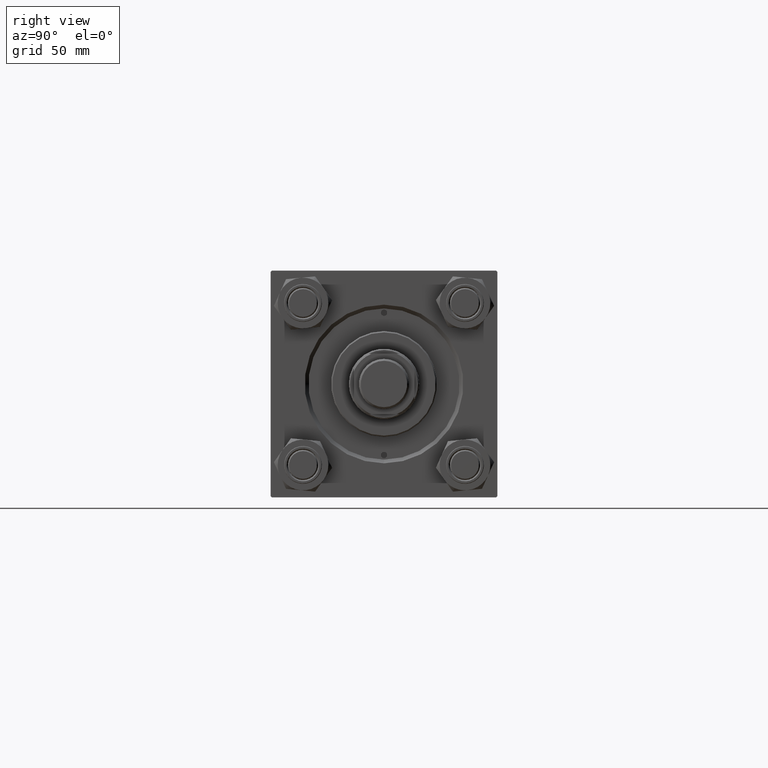
[diagram: clean part render]
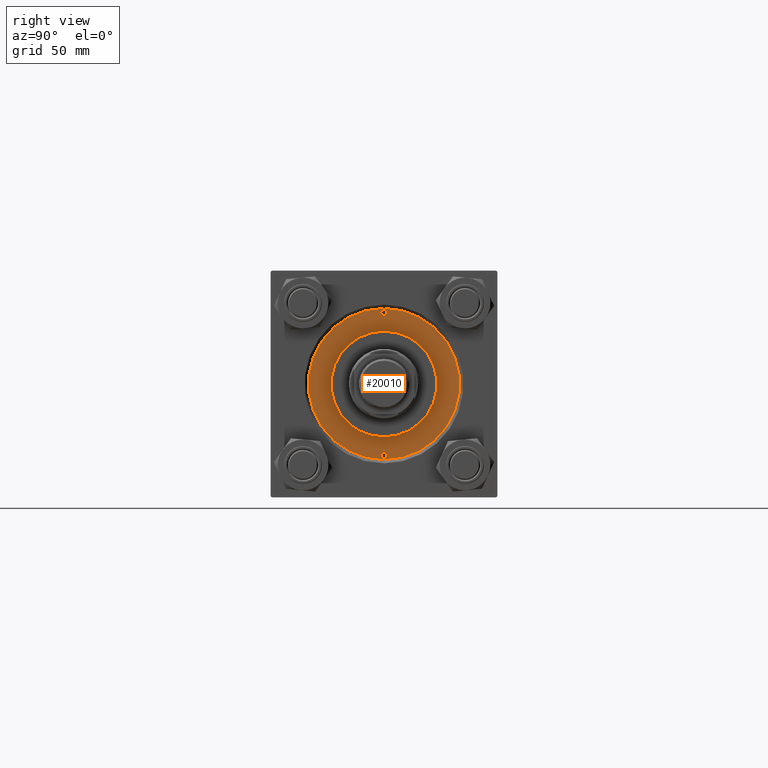
[diagram: same view with one face highlighted and labeled with its STEP entity id]
A machine part, right view. The second image highlights one B-rep face of the part: STEP entity #20010.
In plain terms, the highlighted planar face has unit normal (1, 0, -0).
Its self-contained STEP definition (entity closure, byte-faithful):
#1148 = CARTESIAN_POINT ( 'NONE',  ( -28.25000000000000000, 0.000000000000000000, 28.69999999999999929 ) ) ;
#1184 = CIRCLE ( 'NONE', #47577, 1.249999999999997558 ) ;
#1245 = CARTESIAN_POINT ( 'NONE',  ( 28.25000000000000000, 0.000000000000000000, 28.69999999999999929 ) ) ;
#1351 = CIRCLE ( 'NONE', #36378, 30.00000000000000000 ) ;
#1708 = PLANE ( 'NONE',  #3645 ) ;
#1956 = DIRECTION ( 'NONE',  ( 0.000000000000000000, 0.000000000000000000, 1.000000000000000000 ) ) ;
#2040 = CARTESIAN_POINT ( 'NONE',  ( 27.00000000000000355, 1.530808498934192803E-16, 28.69999999999999929 ) ) ;
#2634 = EDGE_CURVE ( 'NONE', #7682, #4646, #35645, .T. ) ;
#2665 = CARTESIAN_POINT ( 'NONE',  ( 0.000000000000000000, 0.000000000000000000, 28.69999999999999929 ) ) ;
#2715 = DIRECTION ( 'NONE',  ( 0.000000000000000000, 0.000000000000000000, 1.000000000000000000 ) ) ;
#3645 = AXIS2_PLACEMENT_3D ( 'NONE', #13441, #1956, #18019 ) ;
#4646 = VERTEX_POINT ( 'NONE', #41315 ) ;
#5545 = CARTESIAN_POINT ( 'NONE',  ( 0.000000000000000000, 0.000000000000000000, 28.69999999999999929 ) ) ;
#6044 = DIRECTION ( 'NONE',  ( 1.000000000000000000, 0.000000000000000000, 0.000000000000000000 ) ) ;
#7682 = VERTEX_POINT ( 'NONE', #47575 ) ;
#9868 = DIRECTION ( 'NONE',  ( 0.000000000000000000, 0.000000000000000000, 1.000000000000000000 ) ) ;
#12620 = ORIENTED_EDGE ( 'NONE', *, *, #18715, .F. ) ;
#13080 = CARTESIAN_POINT ( 'NONE',  ( 30.00000000000000000, 3.673940397442059178E-15, 28.69999999999999929 ) ) ;
#13441 = CARTESIAN_POINT ( 'NONE',  ( 0.000000000000000000, 0.000000000000000000, 28.69999999999999929 ) ) ;
#13625 = AXIS2_PLACEMENT_3D ( 'NONE', #22109, #2715, #6044 ) ;
#14711 = ORIENTED_EDGE ( 'NONE', *, *, #48738, .F. ) ;
#14962 = CIRCLE ( 'NONE', #44257, 21.00000000000000000 ) ;
#15396 = CARTESIAN_POINT ( 'NONE',  ( 21.00000000000000000, 2.571758278209441661E-15, 28.69999999999999929 ) ) ;
#16537 = CIRCLE ( 'NONE', #18971, 1.249999999999997558 ) ;
#17113 = CARTESIAN_POINT ( 'NONE',  ( -30.00000000000000000, 0.000000000000000000, 28.69999999999999929 ) ) ;
#17511 = CARTESIAN_POINT ( 'NONE',  ( 0.000000000000000000, 0.000000000000000000, 28.69999999999999929 ) ) ;
#17516 = FACE_BOUND ( 'NONE', #30804, .T. ) ;
#18019 = DIRECTION ( 'NONE',  ( 1.000000000000000000, 0.000000000000000000, -0.000000000000000000 ) ) ;
#18217 = ORIENTED_EDGE ( 'NONE', *, *, #2634, .F. ) ;
#18227 = DIRECTION ( 'NONE',  ( 0.000000000000000000, 0.000000000000000000, 1.000000000000000000 ) ) ;
#18715 = EDGE_CURVE ( 'NONE', #48182, #44228, #43511, .T. ) ;
#18913 = EDGE_LOOP ( 'NONE', ( #47075, #40622 ) ) ;
#18971 = AXIS2_PLACEMENT_3D ( 'NONE', #42132, #33546, #23266 ) ;
#19394 = EDGE_CURVE ( 'NONE', #4646, #7682, #1184, .T. ) ;
#20010 = ADVANCED_FACE ( 'NONE', ( #48356, #17516, #25196, #36407 ), #1708, .T. ) ;
#21282 = DIRECTION ( 'NONE',  ( 0.000000000000000000, 0.000000000000000000, 1.000000000000000000 ) ) ;
#21529 = AXIS2_PLACEMENT_3D ( 'NONE', #23133, #44621, #33165 ) ;
#22109 = CARTESIAN_POINT ( 'NONE',  ( -28.25000000000000000, 0.000000000000000000, 28.69999999999999929 ) ) ;
#22342 = VERTEX_POINT ( 'NONE', #13080 ) ;
#22356 = DIRECTION ( 'NONE',  ( 1.000000000000000000, 0.000000000000000000, 0.000000000000000000 ) ) ;
#23133 = CARTESIAN_POINT ( 'NONE',  ( 0.000000000000000000, 0.000000000000000000, 28.69999999999999929 ) ) ;
#23266 = DIRECTION ( 'NONE',  ( 1.000000000000000000, 0.000000000000000000, 0.000000000000000000 ) ) ;
#24562 = VERTEX_POINT ( 'NONE', #29926 ) ;
#25196 = FACE_BOUND ( 'NONE', #45309, .T. ) ;
#25660 = ORIENTED_EDGE ( 'NONE', *, *, #19394, .F. ) ;
#28226 = EDGE_CURVE ( 'NONE', #42154, #22342, #1351, .T. ) ;
#28451 = DIRECTION ( 'NONE',  ( 1.000000000000000000, 0.000000000000000000, 0.000000000000000000 ) ) ;
#29826 = ORIENTED_EDGE ( 'NONE', *, *, #45372, .F. ) ;
#29926 = CARTESIAN_POINT ( 'NONE',  ( 29.50000000000000000, 0.000000000000000000, 28.69999999999999929 ) ) ;
#30231 = DIRECTION ( 'NONE',  ( 1.000000000000000000, 0.000000000000000000, 0.000000000000000000 ) ) ;
#30695 = EDGE_CURVE ( 'NONE', #22342, #42154, #44545, .T. ) ;
#30804 = EDGE_LOOP ( 'NONE', ( #32550, #29826 ) ) ;
#32444 = EDGE_CURVE ( 'NONE', #24562, #44605, #42198, .T. ) ;
#32550 = ORIENTED_EDGE ( 'NONE', *, *, #32444, .F. ) ;
#32584 = DIRECTION ( 'NONE',  ( 1.000000000000000000, 0.000000000000000000, 0.000000000000000000 ) ) ;
#33165 = DIRECTION ( 'NONE',  ( 1.000000000000000000, 0.000000000000000000, 0.000000000000000000 ) ) ;
#33546 = DIRECTION ( 'NONE',  ( 0.000000000000000000, 0.000000000000000000, 1.000000000000000000 ) ) ;
#35218 = CARTESIAN_POINT ( 'NONE',  ( -21.00000000000000000, 0.000000000000000000, 28.69999999999999929 ) ) ;
#35645 = CIRCLE ( 'NONE', #13625, 1.249999999999997558 ) ;
#35672 = DIRECTION ( 'NONE',  ( 0.000000000000000000, 0.000000000000000000, 1.000000000000000000 ) ) ;
#36378 = AXIS2_PLACEMENT_3D ( 'NONE', #5545, #35672, #32584 ) ;
#36407 = FACE_OUTER_BOUND ( 'NONE', #18913, .T. ) ;
#37108 = DIRECTION ( 'NONE',  ( 1.000000000000000000, 0.000000000000000000, 0.000000000000000000 ) ) ;
#40505 = DIRECTION ( 'NONE',  ( 0.000000000000000000, 0.000000000000000000, 1.000000000000000000 ) ) ;
#40585 = AXIS2_PLACEMENT_3D ( 'NONE', #1245, #40505, #30231 ) ;
#40622 = ORIENTED_EDGE ( 'NONE', *, *, #30695, .T. ) ;
#41315 = CARTESIAN_POINT ( 'NONE',  ( -27.00000000000000355, 0.000000000000000000, 28.69999999999999929 ) ) ;
#42132 = CARTESIAN_POINT ( 'NONE',  ( 28.25000000000000000, 0.000000000000000000, 28.69999999999999929 ) ) ;
#42154 = VERTEX_POINT ( 'NONE', #17113 ) ;
#42198 = CIRCLE ( 'NONE', #40585, 1.249999999999997558 ) ;
#43511 = CIRCLE ( 'NONE', #21529, 21.00000000000000000 ) ;
#44228 = VERTEX_POINT ( 'NONE', #15396 ) ;
#44257 = AXIS2_PLACEMENT_3D ( 'NONE', #17511, #9868, #22356 ) ;
#44348 = EDGE_LOOP ( 'NONE', ( #25660, #18217 ) ) ;
#44545 = CIRCLE ( 'NONE', #47029, 30.00000000000000000 ) ;
#44605 = VERTEX_POINT ( 'NONE', #2040 ) ;
#44621 = DIRECTION ( 'NONE',  ( 0.000000000000000000, 0.000000000000000000, 1.000000000000000000 ) ) ;
#45309 = EDGE_LOOP ( 'NONE', ( #12620, #14711 ) ) ;
#45372 = EDGE_CURVE ( 'NONE', #44605, #24562, #16537, .T. ) ;
#47029 = AXIS2_PLACEMENT_3D ( 'NONE', #2665, #18227, #37108 ) ;
#47075 = ORIENTED_EDGE ( 'NONE', *, *, #28226, .T. ) ;
#47575 = CARTESIAN_POINT ( 'NONE',  ( -29.50000000000000000, 1.530808498934192803E-16, 28.69999999999999929 ) ) ;
#47577 = AXIS2_PLACEMENT_3D ( 'NONE', #1148, #21282, #28451 ) ;
#48182 = VERTEX_POINT ( 'NONE', #35218 ) ;
#48356 = FACE_BOUND ( 'NONE', #44348, .T. ) ;
#48738 = EDGE_CURVE ( 'NONE', #44228, #48182, #14962, .T. ) ;